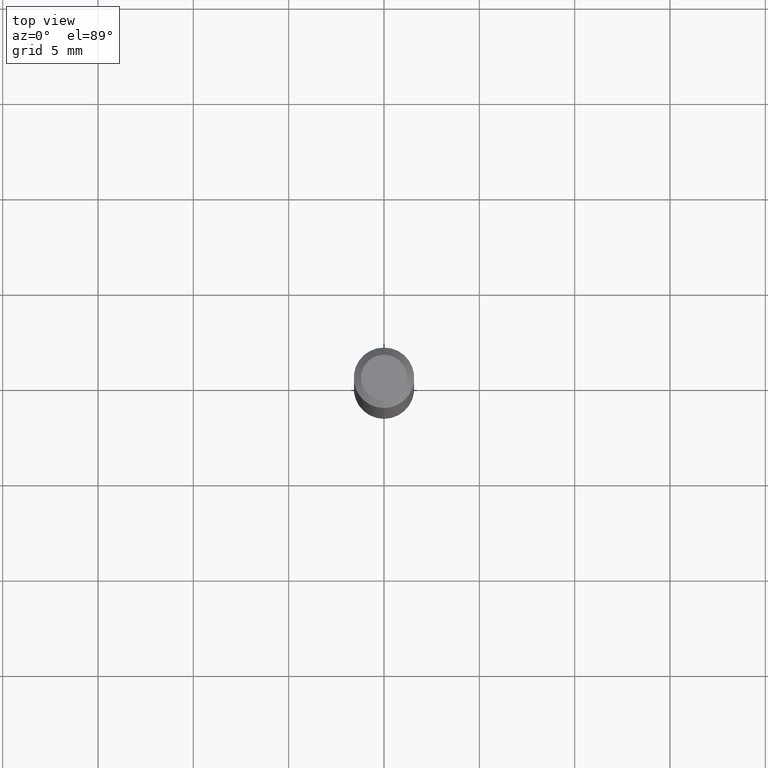
[diagram: clean part render]
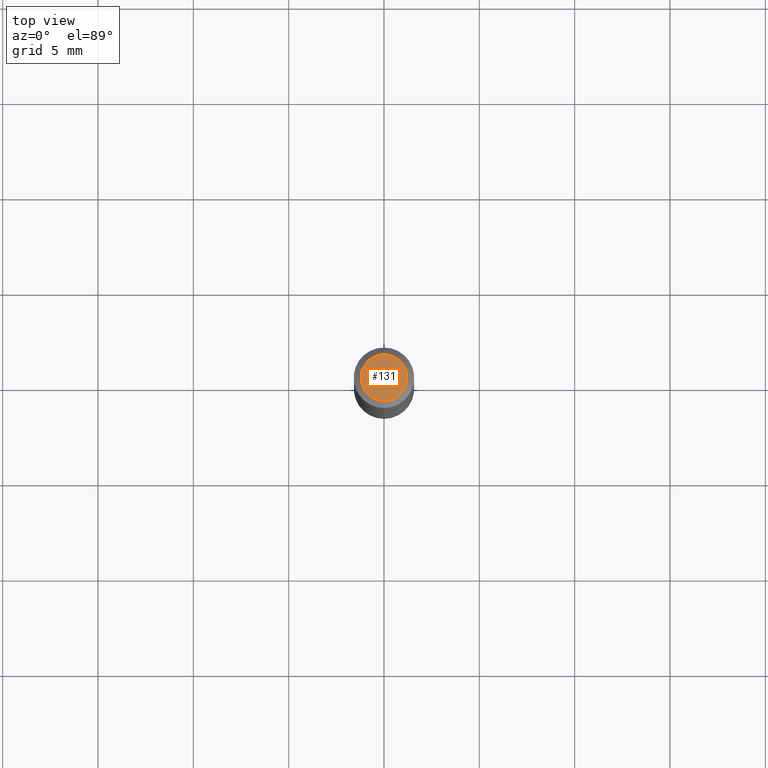
[diagram: same view with one face highlighted and labeled with its STEP entity id]
A machine part, top view. The second image highlights one B-rep face of the part: STEP entity #131.
In plain terms, the highlighted planar face has unit normal (0, -0, -1).
Its self-contained STEP definition (entity closure, byte-faithful):
#43 = EDGE_CURVE ( 'NONE', #198, #379, #471, .T. ) ;
#71 = CARTESIAN_POINT ( 'NONE',  ( -6.680610484932883231E-45, 9.538423244268342009E-31, 2.731872548347987796E-16 ) ) ;
#89 = CARTESIAN_POINT ( 'NONE',  ( 3.840629472727447874E-16, 0.04750000000000000749, 1.073394357713768884E-16 ) ) ;
#119 = PLANE ( 'NONE',  #182 ) ;
#128 = DIRECTION ( 'NONE',  ( -6.982962677686265133E-15, -1.000000000000000000, 3.491533032914144091E-15 ) ) ;
#131 = ADVANCED_FACE ( 'NONE', ( #482 ), #119, .F. ) ;
#161 = CARTESIAN_POINT ( 'NONE',  ( 3.316907271900976589E-16, 0.04750000000000000749, -2.925419164602250137E-17 ) ) ;
#166 = ORIENTED_EDGE ( 'NONE', *, *, #368, .T. ) ;
#170 = ORIENTED_EDGE ( 'NONE', *, *, #43, .T. ) ;
#182 = AXIS2_PLACEMENT_3D ( 'NONE', #161, #234, #289 ) ;
#198 = VERTEX_POINT ( 'NONE', #236 ) ;
#231 = AXIS2_PLACEMENT_3D ( 'NONE', #71, #439, #466 ) ;
#234 = DIRECTION ( 'NONE',  ( 2.445432708408292046E-29, -3.491533032914144486E-15, -1.000000000000000000 ) ) ;
#236 = CARTESIAN_POINT ( 'NONE',  ( -3.773273898774340269E-16, -0.04750000000000000749, 4.390350738982206831E-16 ) ) ;
#258 = CARTESIAN_POINT ( 'NONE',  ( -6.680610484932883231E-45, 9.538423244268342009E-31, 2.731872548347987796E-16 ) ) ;
#279 = EDGE_LOOP ( 'NONE', ( #166, #170 ) ) ;
#289 = DIRECTION ( 'NONE',  ( 6.982962677686265922E-15, 1.000000000000000000, -3.491533032914144486E-15 ) ) ;
#304 = DIRECTION ( 'NONE',  ( -2.445432708408292326E-29, 3.491533032914144486E-15, 1.000000000000000000 ) ) ;
#315 = AXIS2_PLACEMENT_3D ( 'NONE', #258, #304, #128 ) ;
#368 = EDGE_CURVE ( 'NONE', #379, #198, #472, .T. ) ;
#379 = VERTEX_POINT ( 'NONE', #89 ) ;
#439 = DIRECTION ( 'NONE',  ( -2.445432708408292326E-29, 3.491533032914144486E-15, 1.000000000000000000 ) ) ;
#466 = DIRECTION ( 'NONE',  ( -6.982962677686265133E-15, -1.000000000000000000, 3.491533032914144091E-15 ) ) ;
#471 = CIRCLE ( 'NONE', #231, 0.04750000000000000749 ) ;
#472 = CIRCLE ( 'NONE', #315, 0.04750000000000000749 ) ;
#482 = FACE_OUTER_BOUND ( 'NONE', #279, .T. ) ;